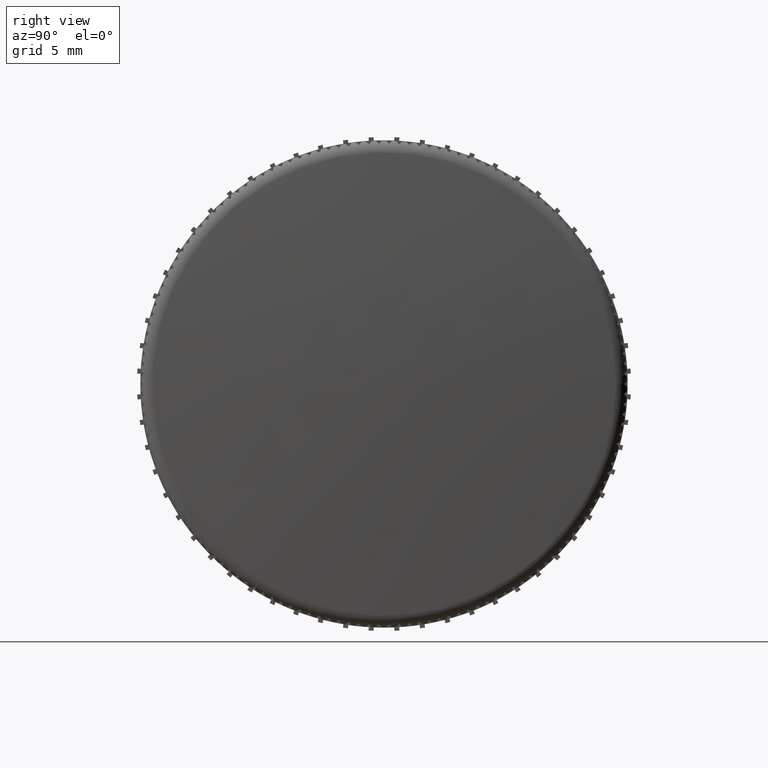
[diagram: clean part render]
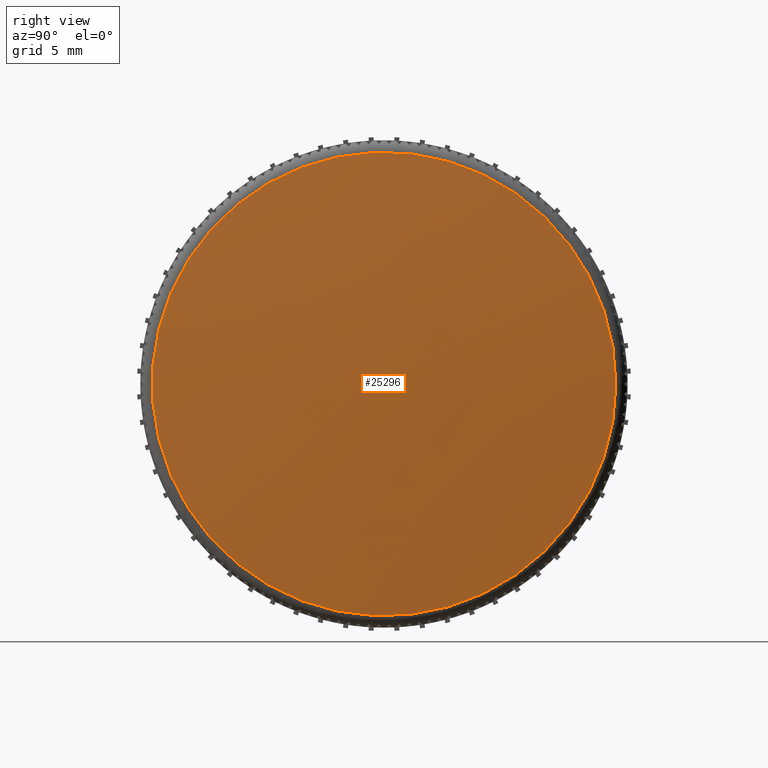
[diagram: same view with one face highlighted and labeled with its STEP entity id]
A machine part, right view. The second image highlights one B-rep face of the part: STEP entity #25296.
In plain terms, the highlighted spherical surface has radius 171.796 mm.
Its self-contained STEP definition (entity closure, byte-faithful):
#22055=CARTESIAN_POINT('',(4.402367075103228,22.042066743237267,-3.425483E-015));
#22056=VERTEX_POINT('',#22055);
#22057=CARTESIAN_POINT('',(4.402367075103228,8.056008623628809,0.0));
#22058=DIRECTION('',(-1.0,0.0,0.0));
#22059=DIRECTION('',(0.0,-1.0,0.0));
#22060=AXIS2_PLACEMENT_3D('',#22057,#22058,#22059);
#22061=CIRCLE('',#22060,13.986058119608455);
#22062=EDGE_CURVE('',#22056,#22056,#22061,.T.);
#25288=CARTESIAN_POINT('',(-166.823425269495030,8.056008623628809,0.0));
#25289=DIRECTION('',(0.0,0.0,1.0));
#25290=DIRECTION('',(1.0,0.0,0.0));
#25291=AXIS2_PLACEMENT_3D('',#25288,#25289,#25290);
#25292=SPHERICAL_SURFACE('',#25291,171.796047060927890);
#25293=ORIENTED_EDGE('',*,*,#22062,.F.);
#25294=EDGE_LOOP('',(#25293));
#25295=FACE_OUTER_BOUND('',#25294,.T.);
#25296=ADVANCED_FACE('',(#25295),#25292,.T.);